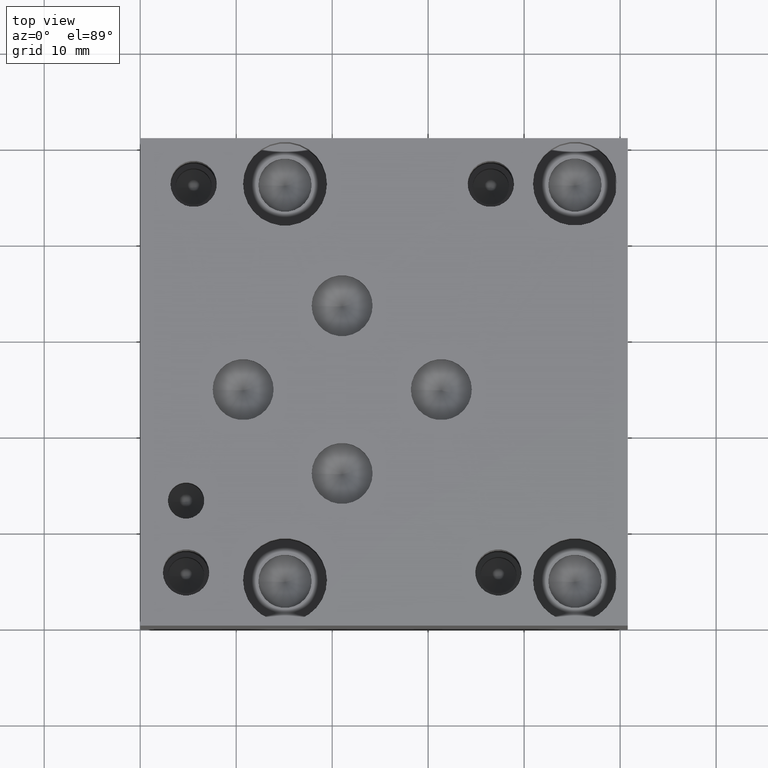
[diagram: clean part render]
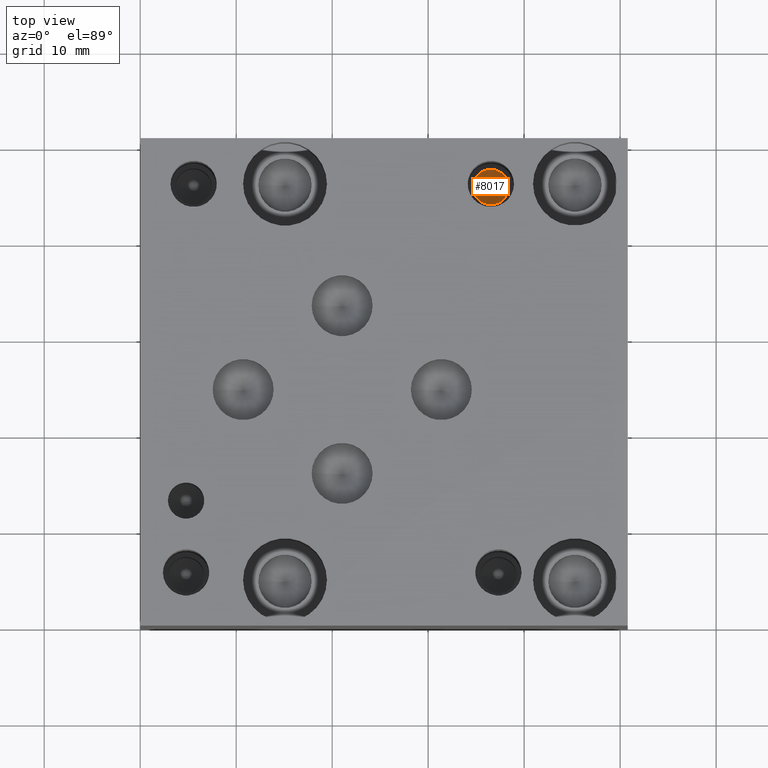
[diagram: same view with one face highlighted and labeled with its STEP entity id]
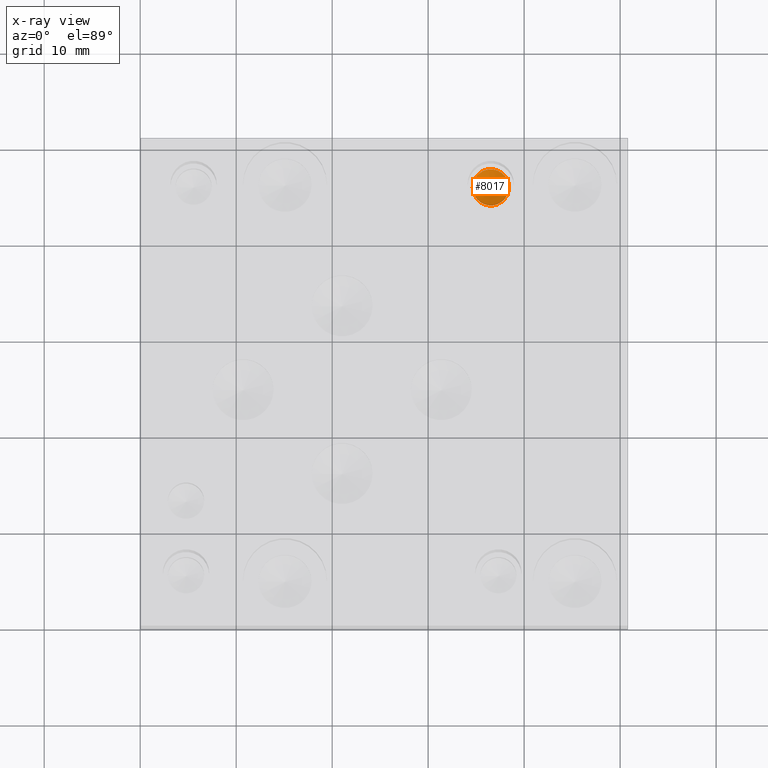
[diagram: x-ray of the same camera — body ghosted, the highlighted face saturated]
A machine part, top view. The second image highlights one B-rep face of the part: STEP entity #8017.
The next image is the same camera in x-ray: the body ghosted, the highlighted face saturated — about 0% of this face is hidden behind the body in this view.
In plain terms, the highlighted conical surface has half-angle 60 deg.
Its self-contained STEP definition (entity closure, byte-faithful):
#33=CONICAL_SURFACE('',#8459,0.94615,1.0471975511966);
#141=CIRCLE('',#8460,1.8923);
#142=CIRCLE('',#8461,1.8923);
#896=FACE_OUTER_BOUND('',#1343,.T.);
#1343=EDGE_LOOP('',(#6933,#6934,#6935,#6936));
#2173=LINE('',#13472,#2980);
#2980=VECTOR('',#10114,0.94615);
#3729=VERTEX_POINT('',#13468);
#3730=VERTEX_POINT('',#13469);
#3731=VERTEX_POINT('',#13471);
#4816=EDGE_CURVE('',#3729,#3730,#141,.T.);
#4817=EDGE_CURVE('',#3730,#3731,#2173,.T.);
#4818=EDGE_CURVE('',#3730,#3729,#142,.T.);
#6933=ORIENTED_EDGE('',*,*,#4816,.T.);
#6934=ORIENTED_EDGE('',*,*,#4817,.T.);
#6935=ORIENTED_EDGE('',*,*,#4817,.F.);
#6936=ORIENTED_EDGE('',*,*,#4818,.T.);
#8017=ADVANCED_FACE('',(#896),#33,.F.);
#8459=AXIS2_PLACEMENT_3D('',#13467,#10110,#10111);
#8460=AXIS2_PLACEMENT_3D('',#13470,#10112,#10113);
#8461=AXIS2_PLACEMENT_3D('',#13473,#10115,#10116);
#10110=DIRECTION('center_axis',(0.,0.,1.));
#10111=DIRECTION('ref_axis',(1.,0.,0.));
#10112=DIRECTION('center_axis',(0.,0.,1.));
#10113=DIRECTION('ref_axis',(1.,0.,0.));
#10114=DIRECTION('',(0.866025403784439,1.06057523872491E-16,-0.5));
#10115=DIRECTION('center_axis',(0.,0.,1.));
#10116=DIRECTION('ref_axis',(1.,0.,0.));
#13467=CARTESIAN_POINT('Origin',(36.5252,46.0248,3.77174004280624));
#13468=CARTESIAN_POINT('',(38.4175,46.0248,4.318));
#13469=CARTESIAN_POINT('',(34.6329,46.0248,4.318));
#13470=CARTESIAN_POINT('Origin',(36.5252,46.0248,4.318));
#13471=CARTESIAN_POINT('',(36.5252,46.0248,3.22548008561247));
#13472=CARTESIAN_POINT('',(35.57905,46.0248,3.77174004280624));
#13473=CARTESIAN_POINT('Origin',(36.5252,46.0248,4.318));